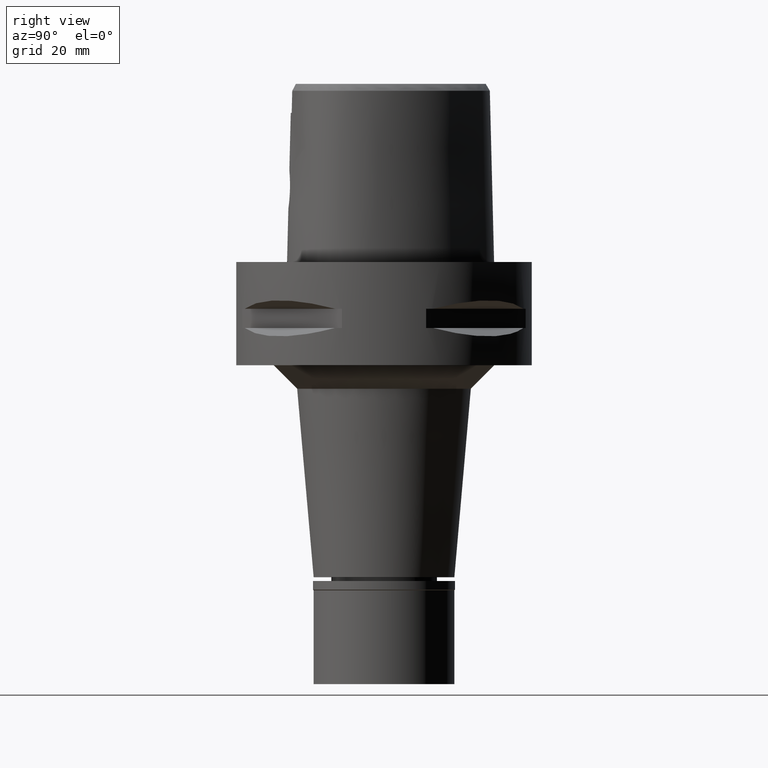
[diagram: clean part render]
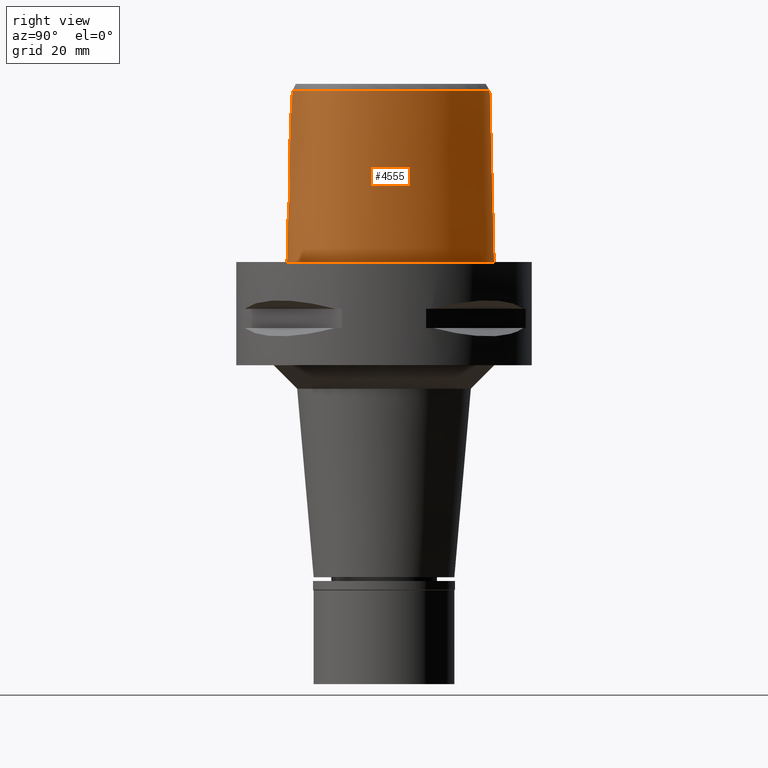
[diagram: same view with one face highlighted and labeled with its STEP entity id]
A machine part, right view. The second image highlights one B-rep face of the part: STEP entity #4555.
In plain terms, the highlighted face is a freeform B-spline surface patch.
Its self-contained STEP definition (entity closure, byte-faithful):
#24 = CARTESIAN_POINT ( 'NONE',  ( 3.328551379731097271, -20.18727222456396220, 13.19186960082585891 ) ) ;
#50 = CARTESIAN_POINT ( 'NONE',  ( 3.169150985200430259, -20.20760989054311807, 12.97742286930016142 ) ) ;
#77 = CARTESIAN_POINT ( 'NONE',  ( 3.644654988711822696, -20.14185568960223094, 13.73169098998871895 ) ) ;
#102 = CARTESIAN_POINT ( 'NONE',  ( 2.871987183427979318, -20.09819914941970609, 18.35556622516799763 ) ) ;
#125 = CARTESIAN_POINT ( 'NONE',  ( 3.755991642143149623, -20.04748304465436348, 17.01495889863319277 ) ) ;
#142 = EDGE_CURVE ( 'NONE', #2835, #2543, #1356, .T. ) ;
#171 = CARTESIAN_POINT ( 'NONE',  ( 19.88562079789232229, 4.345879946636718394, 36.52186680739950475 ) ) ;
#182 = CARTESIAN_POINT ( 'NONE',  ( 11.02138187803999791, -18.31230475175999928, 24.59139440262000065 ) ) ;
#195 = CARTESIAN_POINT ( 'NONE',  ( 21.32871516740222972, -4.105831245034531563, 36.52186680739950475 ) ) ;
#206 = CARTESIAN_POINT ( 'NONE',  ( 11.23887130061999962, -18.91049775489000240, -0.7304374575036000072 ) ) ;
#228 = CARTESIAN_POINT ( 'NONE',  ( -1.574545528900000111E-11, 22.56201468012000078, 36.52186680743999858 ) ) ;
#236 = CARTESIAN_POINT ( 'NONE',  ( 16.97022730764999920, -15.69280482675999799, -0.7304374575036000072 ) ) ;
#242 = VERTEX_POINT ( 'NONE', #631 ) ;
#283 = CARTESIAN_POINT ( 'NONE',  ( 21.68301111231999911, -0.3332743857734999926, 11.93047847256000082 ) ) ;
#312 = CARTESIAN_POINT ( 'NONE',  ( 7.580410837343000807, 21.33037925809000157, -0.7304374575036000072 ) ) ;
#314 = CARTESIAN_POINT ( 'NONE',  ( 2.570081009077924694, -20.27170108689831096, 12.36908902938837329 ) ) ;
#334 = CARTESIAN_POINT ( 'NONE',  ( -0.4812391251881000254, 23.48607175731999774, -0.7304374575036000072 ) ) ;
#352 = CARTESIAN_POINT ( 'NONE',  ( 2.438150645040000342, 22.68791659256999793, 24.59139440262000065 ) ) ;
#353 = CARTESIAN_POINT ( 'NONE',  ( 2.808608589969339597, -20.24816661311874455, 12.58196638594038674 ) ) ;
#356 = CARTESIAN_POINT ( 'NONE',  ( 0.8548392429687943217, 23.47500000932142683, -3.727169554164789372E-07 ) ) ;
#380 = CARTESIAN_POINT ( 'NONE',  ( 4.750826283117000060, 21.65775821445999583, 37.25231033268999425 ) ) ;
#406 = CARTESIAN_POINT ( 'NONE',  ( 3.860403433738023526, -20.04330035600995430, 16.72651338064458670 ) ) ;
#431 = CARTESIAN_POINT ( 'NONE',  ( 3.850246712577160668, -20.10780614032428204, 14.21172176771008466 ) ) ;
#454 = CARTESIAN_POINT ( 'NONE',  ( 3.918456791373584380, -20.04170609324362218, 16.53266420031117434 ) ) ;
#480 = CARTESIAN_POINT ( 'NONE',  ( 3.714384130528385342, -20.13065104887392565, 13.88538127572184244 ) ) ;
#538 = EDGE_CURVE ( 'NONE', #1228, #2155, #3386, .T. ) ;
#543 = CARTESIAN_POINT ( 'NONE',  ( 17.90324024157894556, -13.53935104436586734, 36.52186680739950475 ) ) ;
#568 = CARTESIAN_POINT ( 'NONE',  ( 19.55745538001410466, -11.29150212658093899, 36.52186680739950475 ) ) ;
#579 = CARTESIAN_POINT ( 'NONE',  ( 19.81622840921000162, -11.44090480521000153, 24.59139440262000065 ) ) ;
#583 = ORIENTED_EDGE ( 'NONE', *, *, #2806, .T. ) ;
#589 = CARTESIAN_POINT ( 'NONE',  ( -1.131694588379999952E-11, -20.67499999999999716, 1.488068927338999721E-13 ) ) ;
#593 = CARTESIAN_POINT ( 'NONE',  ( 20.09619608769164856, -10.23243839429906288, 36.52186680739950475 ) ) ;
#604 = CARTESIAN_POINT ( 'NONE',  ( 6.232237617093999482, -19.68961197962000043, 24.59139440262000065 ) ) ;
#617 = CARTESIAN_POINT ( 'NONE',  ( 2.113823673620303989, -20.67500000931492821, -3.727169554164789372E-07 ) ) ;
#631 = CARTESIAN_POINT ( 'NONE',  ( 3.637738219117000238, -19.56971420299000286, 36.52185956443999970 ) ) ;
#633 = FACE_OUTER_BOUND ( 'NONE', #4537, .T. ) ;
#644 = CARTESIAN_POINT ( 'NONE',  ( 14.67337964882495527, -17.21410157061511370, -3.727169554164789372E-07 ) ) ;
#675 = CARTESIAN_POINT ( 'NONE',  ( 0.5662264715049001307, 22.56729439776000135, 37.25231033268999425 ) ) ;
#676 = CARTESIAN_POINT ( 'NONE',  ( 1.222756221967064905, -20.36284569854002413, 11.63840396453690929 ) ) ;
#703 = CARTESIAN_POINT ( 'NONE',  ( 2.758179676619026299, -20.25337897196584791, 12.53390918840871926 ) ) ;
#722 = CARTESIAN_POINT ( 'NONE',  ( 20.76670354388999939, 4.663413652101000118, -0.7304374575036000072 ) ) ;
#738 = DIRECTION ( 'NONE',  ( -8.648272217531810680E-13, -0.02499051295360945474, -0.9996876883618780463 ) ) ;
#744 = CARTESIAN_POINT ( 'NONE',  ( 17.25769873839000113, 9.963736663570999852, 37.25231033268999425 ) ) ;
#765 = CARTESIAN_POINT ( 'NONE',  ( 7.108589361577442922, 20.52412316394332947, 36.52186680739950475 ) ) ;
#771 = CARTESIAN_POINT ( 'NONE',  ( 13.93560880836000138, 15.24203803628000031, 24.59139440262000065 ) ) ;
#772 = CARTESIAN_POINT ( 'NONE',  ( 3.727121516743383545, -20.12854809717478233, 13.91496385434093774 ) ) ;
#801 = CARTESIAN_POINT ( 'NONE',  ( 2.467729343594488700, -20.12009802658483082, 18.71204267792738918 ) ) ;
#824 = CARTESIAN_POINT ( 'NONE',  ( 4.048221369819730242, -20.05572751809195609, 15.37605551827538974 ) ) ;
#852 = CARTESIAN_POINT ( 'NONE',  ( 3.289399613302795622, -20.19244639184432444, 13.13636645578713846 ) ) ;
#877 = CARTESIAN_POINT ( 'NONE',  ( 4.002664568996730843, -20.07397280446545906, 14.86850854360806728 ) ) ;
#927 = CARTESIAN_POINT ( 'NONE',  ( -0.6840631435195000387, -20.68668115835999899, -0.7304374575036000072 ) ) ;
#938 = ORIENTED_EDGE ( 'NONE', *, *, #142, .T. ) ;
#941 = VERTEX_POINT ( 'NONE', #2462 ) ;
#959 = CARTESIAN_POINT ( 'NONE',  ( 20.96392264458999932, -8.820258357166000707, 24.59139440262000065 ) ) ;
#970 = CARTESIAN_POINT ( 'NONE',  ( 2.041042029990999821E-08, -19.88004246002000031, 31.80000004972000127 ) ) ;
#974 = CARTESIAN_POINT ( 'NONE',  ( 7.300578979383786304, -19.07170738131021182, 36.52186680739950475 ) ) ;
#983 = CARTESIAN_POINT ( 'NONE',  ( 1.886855602975000101, -20.71358918984000042, -0.7304374575036000072 ) ) ;
#991 = ORIENTED_EDGE ( 'NONE', *, *, #538, .F. ) ;
#1007 = CARTESIAN_POINT ( 'NONE',  ( 18.12052916771000000, -13.74516039444000093, 24.59139440262000065 ) ) ;
#1037 = CARTESIAN_POINT ( 'NONE',  ( 20.36913789612999892, -10.35391850327000007, 24.59139440262000065 ) ) ;
#1058 = CARTESIAN_POINT ( 'NONE',  ( 2.373090365241999677, 22.37624369964000337, 37.25231033268999425 ) ) ;
#1059 = CARTESIAN_POINT ( 'NONE',  ( 0.8988479711755550383, -20.37494334817867170, 11.54879813003848810 ) ) ;
#1078 = CARTESIAN_POINT ( 'NONE',  ( 2.568271204636999983, 23.31126237844000215, -0.7304374575036000072 ) ) ;
#1105 = CARTESIAN_POINT ( 'NONE',  ( -0.6834384192703000238, 22.83968711892999792, 24.59139440262000065 ) ) ;
#1106 = CARTESIAN_POINT ( 'NONE',  ( 1.488028627205682186, -20.35026873354180665, 11.73319909950358131 ) ) ;
#1108 = CARTESIAN_POINT ( 'NONE',  ( 18.06826689337374603, 10.43171875469033338, -3.727169554164789372E-07 ) ) ;
#1128 = CARTESIAN_POINT ( 'NONE',  ( 5.105252914032000433, 22.54305023722000101, -0.7304374575036000072 ) ) ;
#1132 = CARTESIAN_POINT ( 'NONE',  ( 2.564517728871615443, 23.29328125917631809, -3.727169554164789372E-07 ) ) ;
#1146 = CARTESIAN_POINT ( 'NONE',  ( 2.376843874103945264, 22.39422497744826757, 36.52186680739950475 ) ) ;
#1151 = CARTESIAN_POINT ( 'NONE',  ( 17.80867316501999653, 10.28184213408999881, 11.93047847256000082 ) ) ;
#1154 = CARTESIAN_POINT ( 'NONE',  ( 3.599362307509538006, -20.14875877778753122, 13.64217581390560952 ) ) ;
#1178 = CARTESIAN_POINT ( 'NONE',  ( 3.128678969662743281, -20.08334280844270836, 18.07279819847135727 ) ) ;
#1205 = CARTESIAN_POINT ( 'NONE',  ( 3.950323019400626468, -20.04135421479582746, 16.40274729697467038 ) ) ;
#1227 = CARTESIAN_POINT ( 'NONE',  ( 0.4948470747701968486, -20.18628283969000492, 19.54999999999999716 ) ) ;
#1228 = VERTEX_POINT ( 'NONE', #4660 ) ;
#1254 = CARTESIAN_POINT ( 'NONE',  ( 1.027682876513654531, -20.17741712424492206, 19.45809765211528486 ) ) ;
#1304 = CARTESIAN_POINT ( 'NONE',  ( 1.836480395436000057, -19.76356544504999846, 37.25231033268999425 ) ) ;
#1330 = CARTESIAN_POINT ( 'NONE',  ( 20.36546124030999749, -11.75800452930000084, -0.7304374575036000072 ) ) ;
#1350 = CARTESIAN_POINT ( 'NONE',  ( 3.637738219117000238, -19.56971420299000286, 36.52185956443999970 ) ) ;
#1356 = B_SPLINE_CURVE_WITH_KNOTS ( 'NONE', 3,
 ( #3818, #4505, #2604, #4912 ),
 .UNSPECIFIED., .F., .F.,
 ( 4, 4 ),
 ( 0.0000000000000000000, 1.000000000000000000 ),
 .UNSPECIFIED. ) ;
#1373 = CARTESIAN_POINT ( 'NONE',  ( 20.93173253064228589, -10.60431641004089087, -3.727169554164789372E-07 ) ) ;
#1378 = DIRECTION ( 'NONE',  ( 2.016568643993959699E-12, 0.02499051290953949525, -0.9996876883629797206 ) ) ;
#1386 = CARTESIAN_POINT ( 'NONE',  ( -0.4439347150178000190, -19.74161860721999773, 37.25231033268999425 ) ) ;
#1407 = CARTESIAN_POINT ( 'NONE',  ( 18.89485301902999836, -12.27684390833000094, 37.25231033268999425 ) ) ;
#1436 = CARTESIAN_POINT ( 'NONE',  ( 14.17879766206000092, 15.44741201759999960, 11.93047847256000082 ) ) ;
#1454 = CARTESIAN_POINT ( 'NONE',  ( 13.69241995467000095, 15.03666405495000191, 37.25231033268999425 ) ) ;
#1476 = CARTESIAN_POINT ( 'NONE',  ( 18.08416037834000178, 10.44089486934999833, -0.7304374575036000072 ) ) ;
#1505 = CARTESIAN_POINT ( 'NONE',  ( 7.420053185472999857, 21.05635753440000002, 11.93047847256000082 ) ) ;
#1509 = CARTESIAN_POINT ( 'NONE',  ( 6.819697653479363616E-09, -19.98212988583497207, 27.71666688228305730 ) ) ;
#1530 = CARTESIAN_POINT ( 'NONE',  ( 21.99640701044999602, -0.2778990171974999868, -0.7304374575036000072 ) ) ;
#1531 = CARTESIAN_POINT ( 'NONE',  ( -1.411580633884000040E-12, -20.38876923348000147, 11.44999999999999929 ) ) ;
#1555 = CARTESIAN_POINT ( 'NONE',  ( 2.915545606164124948, -20.09570297646316206, 18.31119129211889884 ) ) ;
#1582 = CARTESIAN_POINT ( 'NONE',  ( 3.437023659536085241, -20.17240543790910223, 13.35378256642169426 ) ) ;
#1609 = CARTESIAN_POINT ( 'NONE',  ( 3.042491796684546390, -20.22274507510627117, 12.82354767342775048 ) ) ;
#1632 = CARTESIAN_POINT ( 'NONE',  ( 2.772326413960481961, -20.10389738242802338, 18.45539022241145233 ) ) ;
#1659 = CARTESIAN_POINT ( 'NONE',  ( 2.963657114689049354, -20.09293563006357175, 18.26079471621624606 ) ) ;
#1715 = CARTESIAN_POINT ( 'NONE',  ( 10.91263716675000062, -18.01320825019000083, 37.25231033268999425 ) ) ;
#1726 = CARTESIAN_POINT ( 'NONE',  ( 11.23259757047761731, -18.89324219629722279, -3.727169554164789372E-07 ) ) ;
#1731 = CARTESIAN_POINT ( 'NONE',  ( 17.27359236349375493, 9.972912859139423603, 36.52186680739950475 ) ) ;
#1738 = EDGE_CURVE ( 'NONE', #2835, #242, #3852, .T. ) ;
#1741 = CARTESIAN_POINT ( 'NONE',  ( 14.36818039475999953, -16.67825740961999870, 24.59139440262000065 ) ) ;
#1754 = CARTESIAN_POINT ( 'NONE',  ( 22.05732875248838809, -6.847636720081132111, -3.727169554164789372E-07 ) ) ;
#1760 = CARTESIAN_POINT ( 'NONE',  ( 3.704239288984441103, -19.64128042389065598, 33.37395322129999897 ) ) ;
#1768 = CARTESIAN_POINT ( 'NONE',  ( 16.38077705838000142, -14.94316477250999853, 37.25231033268999425 ) ) ;
#1790 = CARTESIAN_POINT ( 'NONE',  ( 19.66427014177000032, -12.83600704346999954, -0.7304374575036000072 ) ) ;
#1810 = CARTESIAN_POINT ( 'NONE',  ( 17.53318595169999838, 10.12278939882999929, 24.59139440262000065 ) ) ;
#1813 = CARTESIAN_POINT ( 'NONE',  ( 0.2519697368789033387, -20.38876923348000503, 11.45000000000000107 ) ) ;
#1839 = CARTESIAN_POINT ( 'NONE',  ( -0.4558512756147999889, 22.85344991619000155, 24.59139440262000065 ) ) ;
#1856 = LINE ( 'NONE', #4524, #2150 ) ;
#1880 = CARTESIAN_POINT ( 'NONE',  ( -0.7217521644347000276, 23.47150798142000028, -0.7304374575036000072 ) ) ;
#1908 = CARTESIAN_POINT ( 'NONE',  ( 20.16779752749000210, 4.447573712576999405, 24.59139440262000065 ) ) ;
#1935 = CARTESIAN_POINT ( 'NONE',  ( 3.664274183422228326, -20.05181531545091289, 17.23726368440733836 ) ) ;
#1958 = CARTESIAN_POINT ( 'NONE',  ( 3.765593220700886423, -20.04704214534181261, 16.99108095766544935 ) ) ;
#1980 = CARTESIAN_POINT ( 'NONE',  ( -1.574545528900000111E-11, 22.56201468012000078, 36.52186680743999858 ) ) ;
#1986 = CARTESIAN_POINT ( 'NONE',  ( 1.613182323487282410, -20.15753140428471468, 19.21500890072584866 ) ) ;
#2012 = CARTESIAN_POINT ( 'NONE',  ( 3.003234361619075088, -20.09064592609323441, 18.21745801850105906 ) ) ;
#2036 = CARTESIAN_POINT ( 'NONE',  ( 3.346444325181354706, -20.07049246070043935, 17.78503332968160677 ) ) ;
#2097 = CARTESIAN_POINT ( 'NONE',  ( -0.4479923916457999589, -20.05810158836000312, 24.59139440262000065 ) ) ;
#2130 = CARTESIAN_POINT ( 'NONE',  ( 5.792640471420000553E-11, 23.47499999999000053, 1.459943277381999819E-13 ) ) ;
#2150 = VECTOR ( 'NONE', #738, 1000.000000000000114 ) ;
#2155 = VERTEX_POINT ( 'NONE', #2431 ) ;
#2172 = CARTESIAN_POINT ( 'NONE',  ( -0.6718836875169000855, -20.05378870694000071, 24.59139440262000065 ) ) ;
#2195 = CARTESIAN_POINT ( 'NONE',  ( 21.26836751593999963, -8.910752275383000409, 11.93047847256000082 ) ) ;
#2217 = CARTESIAN_POINT ( 'NONE',  ( -0.4685452004014000194, 23.16976083675000098, 11.93047847256000082 ) ) ;
#2219 = CARTESIAN_POINT ( 'NONE',  ( 1.511996643077466285, -20.34900293593732101, 11.74281483622962519 ) ) ;
#2226 = ORIENTED_EDGE ( 'NONE', *, *, #3103, .T. ) ;
#2264 = CARTESIAN_POINT ( 'NONE',  ( 7.259695533602999795, 20.78233581071000202, 24.59139440262000065 ) ) ;
#2265 = CARTESIAN_POINT ( 'NONE',  ( 2.396851615573344141, -20.28741283536913542, 12.23208293719065587 ) ) ;
#2267 = CARTESIAN_POINT ( 'NONE',  ( 7.571159439071173836, 21.31457032055926248, -3.727169554164789372E-07 ) ) ;
#2284 = CARTESIAN_POINT ( 'NONE',  ( 22.07548128559999867, -6.850245534692000149, -0.7304374575036000072 ) ) ;
#2314 = CARTESIAN_POINT ( 'NONE',  ( 10.75753573455999934, 19.18839675325000016, -0.7304374575036000072 ) ) ;
#2316 = CARTESIAN_POINT ( 'NONE',  ( 4.050037399383524139, -20.04599349312466927, 15.75361975466953446 ) ) ;
#2342 = CARTESIAN_POINT ( 'NONE',  ( 3.749536200694208343, -20.04778253193093107, 17.03086640830633058 ) ) ;
#2367 = CARTESIAN_POINT ( 'NONE',  ( 3.686910441666811256, -20.13511169295956904, 13.82359477182902729 ) ) ;
#2400 = CARTESIAN_POINT ( 'NONE',  ( 3.927790621355288891, -20.09243382074274820, 14.47756111166260595 ) ) ;
#2427 = CARTESIAN_POINT ( 'NONE',  ( 3.559803832331179141, -20.05788146350372614, 17.44950363746711020 ) ) ;
#2431 = CARTESIAN_POINT ( 'NONE',  ( 5.792640471420000553E-11, 23.47499999999000053, 1.459943277381999819E-13 ) ) ;
#2462 = CARTESIAN_POINT ( 'NONE',  ( 0.0000000000000000000, -20.18628283968999781, 19.55000000000000071 ) ) ;
#2506 = CARTESIAN_POINT ( 'NONE',  ( -0.6779734155181998956, -20.37023493264999985, 11.93047847256000082 ) ) ;
#2526 = EDGE_CURVE ( 'NONE', #4048, #941, #3740, .T. ) ;
#2529 = CARTESIAN_POINT ( 'NONE',  ( 11.13012658933000054, -18.61140125332999773, 11.93047847256000082 ) ) ;
#2543 = VERTEX_POINT ( 'NONE', #3316 ) ;
#2544 = CARTESIAN_POINT ( 'NONE',  ( 20.67704204633949416, -8.734985285293515034, 36.52186680739950475 ) ) ;
#2557 = CARTESIAN_POINT ( 'NONE',  ( 18.35112161477000114, -13.96357042806000059, 11.93047847256000082 ) ) ;
#2583 = CARTESIAN_POINT ( 'NONE',  ( 14.52531268159999911, -16.95413756753999834, 11.93047847256000082 ) ) ;
#2604 = CARTESIAN_POINT ( 'NONE',  ( 1.251533272180834544, -19.88005341395529513, 31.80000012137777077 ) ) ;
#2607 = CARTESIAN_POINT ( 'NONE',  ( 2.503210924838999762, 22.99958948549999960, 11.93047847256000082 ) ) ;
#2608 = CARTESIAN_POINT ( 'NONE',  ( 1.028701314430592317, -20.37062275902201947, 11.58049741886263284 ) ) ;
#2658 = CARTESIAN_POINT ( 'NONE',  ( 10.74572891661287422, 19.17433594467898317, -3.727169554164789372E-07 ) ) ;
#2674 = CARTESIAN_POINT ( 'NONE',  ( 21.13154908213999761, -6.714587105705999370, 37.25231033268999425 ) ) ;
#2689 = B_SPLINE_CURVE_WITH_KNOTS ( 'NONE', 3,
 ( #1980, #3897, #1146, #4238, #765, #3481, #4832, #1731, #171, #4799, #195, #3232, #2544, #593, #568, #3206, #543, #4057, #3254, #3310, #974, #4370, #1350 ),
 .UNSPECIFIED., .F., .F.,
 ( 4, 1, 1, 1, 1, 1, 1, 1, 1, 1, 1, 1, 1, 1, 1, 1, 1, 1, 1, 1, 4 ),
 ( 0.0000000000000000000, 0.04382683003322340037, 0.08765366006602592908, 0.1314804900989337832, 0.1753073201318416652, 0.2629609801974468475, 0.3506146402631573622, 0.4382683003288677659, 0.5259219603945782806, 0.5697487904274860515, 0.6135756204602886843, 0.6574024504930913171, 0.6793158655094925225, 0.7012292805259991990, 0.7231426955424004044, 0.7450561105588017208, 0.7888829405917096027, 0.8327097706246173736, 0.8765366006573148683, 0.9641902607230883326, 1.000000000000000000 ),
 .UNSPECIFIED. ) ;
#2695 = CARTESIAN_POINT ( 'NONE',  ( 22.26285555981000286, -4.100361500081000088, -0.7304374575036000072 ) ) ;
#2697 = CARTESIAN_POINT ( 'NONE',  ( 4.049643110176855743, -20.05399160878178222, 15.43795828973815354 ) ) ;
#2728 = CARTESIAN_POINT ( 'NONE',  ( 3.504989208453384464, -20.16277707621499715, 13.46647361530370546 ) ) ;
#2753 = CARTESIAN_POINT ( 'NONE',  ( 1.767192251271850090, -20.15197845540204824, 19.14519926631098201 ) ) ;
#2777 = CARTESIAN_POINT ( 'NONE',  ( -1.131694588379999952E-11, -20.67499999999999716, 1.488068927338999721E-13 ) ) ;
#2779 = CARTESIAN_POINT ( 'NONE',  ( 2.844541275131343472, -20.24438467540248965, 12.61708719065900297 ) ) ;
#2780 = ORIENTED_EDGE ( 'NONE', *, *, #2526, .F. ) ;
#2805 = CARTESIAN_POINT ( 'NONE',  ( 3.265869583394081399, -20.07528142228560597, 17.89964299955867233 ) ) ;
#2806 = EDGE_CURVE ( 'NONE', #4048, #4624, #1856, .T. ) ;
#2835 = VERTEX_POINT ( 'NONE', #4149 ) ;
#2889 = CARTESIAN_POINT ( 'NONE',  ( 20.94844325358000248, -10.61175396771999857, -0.7304374575036000072 ) ) ;
#2901 = CARTESIAN_POINT ( 'NONE',  ( 16.95889173171761755, -15.67838867922683654, -3.727169554164789372E-07 ) ) ;
#2924 = CARTESIAN_POINT ( 'NONE',  ( 5.098437020761553029, 22.52602539931565673, -3.727169554164789372E-07 ) ) ;
#2937 = CARTESIAN_POINT ( 'NONE',  ( 14.68244496844000047, -17.23001772545000065, -0.7304374575036000072 ) ) ;
#2948 = VECTOR ( 'NONE', #1378, 1000.000000000000227 ) ;
#2964 = CARTESIAN_POINT ( 'NONE',  ( 20.09084482476000133, -11.59945466724999896, 11.93047847256000082 ) ) ;
#2989 = CARTESIAN_POINT ( 'NONE',  ( 7.099337881732999733, 20.50831408701999692, 37.25231033268999425 ) ) ;
#3008 = CARTESIAN_POINT ( 'NONE',  ( -0.7025952918525000257, 23.15559755017000043, 11.93047847256000082 ) ) ;
#3009 = CARTESIAN_POINT ( 'NONE',  ( 1.734379789051324394, -20.33697246834272931, 11.83436638252415207 ) ) ;
#3030 = CARTESIAN_POINT ( 'NONE',  ( 4.868968493421999888, 21.95285555537999755, 24.59139440262000065 ) ) ;
#3032 = CARTESIAN_POINT ( 'NONE',  ( 0.5100579658808597205, -20.38531276215466903, 11.47358267918780683 ) ) ;
#3060 = CARTESIAN_POINT ( 'NONE',  ( 21.62788420925999944, -4.104079497255999520, 24.59139440262000065 ) ) ;
#3063 = CARTESIAN_POINT ( 'NONE',  ( 0.0000000000000000000, -20.18628283968999781, 19.55000000000000071 ) ) ;
#3082 = CARTESIAN_POINT ( 'NONE',  ( 21.44619314996000270, -6.759806582033999867, 24.59139440262000065 ) ) ;
#3083 = CARTESIAN_POINT ( 'NONE',  ( 1.946611601990727136, -20.32311006286679955, 11.93862046598383486 ) ) ;
#3103 = EDGE_CURVE ( 'NONE', #1228, #242, #2689, .T. ) ;
#3104 = CARTESIAN_POINT ( 'NONE',  ( 2.673904828757010854, -20.10928166633798853, 18.54472627324864575 ) ) ;
#3136 = CARTESIAN_POINT ( 'NONE',  ( 2.880386059684327371, -20.09771851976560342, 18.34709984349605350 ) ) ;
#3145 = ORIENTED_EDGE ( 'NONE', *, *, #1738, .F. ) ;
#3162 = CARTESIAN_POINT ( 'NONE',  ( 2.894506219205052577, -20.09690955887032260, 18.33274339089201277 ) ) ;
#3180 = B_SPLINE_CURVE_WITH_KNOTS ( 'NONE', 3,
 ( #589, #617, #3305, #1726, #644, #2901, #4852, #4098, #4581, #1373, #3712, #1754, #3826, #4074, #3853, #1108, #3329, #2658, #2267, #2924, #1132, #356, #2130 ),
 .UNSPECIFIED., .F., .F.,
 ( 4, 1, 1, 1, 1, 1, 1, 1, 1, 1, 1, 1, 1, 1, 1, 1, 1, 1, 1, 1, 4 ),
 ( 0.0000000000000000000, 0.08333333333344000726, 0.1666666666668000230, 0.2083333333333000081, 0.2500000000000000000, 0.2916666666666999919, 0.3125000000000000000, 0.3333333333333000081, 0.3541666666666999919, 0.3750000000000000000, 0.4166666666666000163, 0.4583333333332000326, 0.4999999999998999689, 0.5833333333332000326, 0.6666666666664999852, 0.7499999999998000488, 0.8333333333329999704, 0.8749999999997000177, 0.9166666666664000651, 0.9583333333329999704, 1.000000000000000000 ),
 .UNSPECIFIED. ) ;
#3187 = CARTESIAN_POINT ( 'NONE',  ( 2.032175996688421638, -20.14130468679994124, 19.00576489867748364 ) ) ;
#3206 = CARTESIAN_POINT ( 'NONE',  ( 18.90964962507504410, -12.28759713487154137, 36.52186680739950475 ) ) ;
#3213 = CARTESIAN_POINT ( 'NONE',  ( 4.045013207771817498, -20.05847505277892395, 15.28275217492799065 ) ) ;
#3232 = CARTESIAN_POINT ( 'NONE',  ( 21.14970177530845774, -6.717195943319587137, 36.52186680739950475 ) ) ;
#3254 = CARTESIAN_POINT ( 'NONE',  ( 14.22011350746694447, -16.41829354688284681, 36.52186680739950475 ) ) ;
#3264 = CARTESIAN_POINT ( 'NONE',  ( 16.57726047481000009, -15.19304479060000013, 24.59139440262000065 ) ) ;
#3294 = CARTESIAN_POINT ( 'NONE',  ( 20.07948521740999936, -10.22500077103999949, 37.25231033268999425 ) ) ;
#3305 = CARTESIAN_POINT ( 'NONE',  ( 6.341471020867912145, -20.29812500922345819, -3.727169554164789372E-07 ) ) ;
#3310 = CARTESIAN_POINT ( 'NONE',  ( 10.91891095220992014, -18.03046396093127157, 36.52186680739950475 ) ) ;
#3316 = CARTESIAN_POINT ( 'NONE',  ( 2.041042029990999821E-08, -19.88004246002000031, 31.80000004972000127 ) ) ;
#3329 = CARTESIAN_POINT ( 'NONE',  ( 14.40795639674408868, 15.64093750605300848, -3.727169554164789372E-07 ) ) ;
#3341 = CARTESIAN_POINT ( 'NONE',  ( 19.40779776751999819, -12.64961933176000031, 11.93047847256000082 ) ) ;
#3367 = CARTESIAN_POINT ( 'NONE',  ( 10.34823250352999935, 18.70095514072999876, 24.59139440262000065 ) ) ;
#3386 = LINE ( 'NONE', #228, #2948 ) ;
#3395 = CARTESIAN_POINT ( 'NONE',  ( -0.4431573508281000384, 22.53713899562999856, 37.25231033268999425 ) ) ;
#3433 = CARTESIAN_POINT ( 'NONE',  ( 19.86834451928999812, 4.339653742813999848, 37.25231033268999425 ) ) ;
#3435 = CARTESIAN_POINT ( 'NONE',  ( 2.830175095658037598, -20.24590160278927797, 12.60298252333451252 ) ) ;
#3440 = EDGE_CURVE ( 'NONE', #4624, #2155, #3180, .T. ) ;
#3461 = CARTESIAN_POINT ( 'NONE',  ( 0.5990982063365000165, 23.20165478056999930, 11.93047847256000082 ) ) ;
#3476 = EDGE_CURVE ( 'NONE', #2543, #941, #4814, .T. ) ;
#3481 = CARTESIAN_POINT ( 'NONE',  ( 10.15538781007171387, 18.47129526702921254, 36.52186680739950475 ) ) ;
#3487 = CARTESIAN_POINT ( 'NONE',  ( 3.080229322184858454, -20.08617626112498655, 18.13071590546251954 ) ) ;
#3510 = CARTESIAN_POINT ( 'NONE',  ( 1.856701250920566260, -20.14848423775658759, 19.09993988372152529 ) ) ;
#3541 = CARTESIAN_POINT ( 'NONE',  ( 1.583085234473553760, -20.15857747892415830, 19.22794739783308060 ) ) ;
#3564 = CARTESIAN_POINT ( 'NONE',  ( 3.787426346252553699, -20.04607170149531115, 16.93525315949906229 ) ) ;
#3587 = CARTESIAN_POINT ( 'NONE',  ( 2.853007646184911206, -20.24348516854157154, 12.62547111175370596 ) ) ;
#3647 = CARTESIAN_POINT ( 'NONE',  ( 6.175998637785000689, -19.37631814735000191, 37.25231033268999425 ) ) ;
#3663 = CARTESIAN_POINT ( 'NONE',  ( -1.411580633884000040E-12, -20.38876923348000147, 11.44999999999999929 ) ) ;
#3670 = CARTESIAN_POINT ( 'NONE',  ( 19.54161199365999835, -11.28235494317000054, 37.25231033268999425 ) ) ;
#3690 = CARTESIAN_POINT ( 'NONE',  ( 3.671249151389730514, -19.60525176641679579, 34.94790639287000289 ) ) ;
#3699 = CARTESIAN_POINT ( 'NONE',  ( 14.21104810791999995, -16.40237725170999994, 37.25231033268999425 ) ) ;
#3712 = CARTESIAN_POINT ( 'NONE',  ( 21.55524826905910274, -8.996025393288993754, -3.727169554164789372E-07 ) ) ;
#3727 = CARTESIAN_POINT ( 'NONE',  ( -0.6657939595156000534, -19.73734248122999801, 37.25231033268999425 ) ) ;
#3740 = B_SPLINE_CURVE_WITH_KNOTS ( 'NONE', 3,
 ( #1531, #1813, #3032, #1059, #2608, #676, #4577, #4177, #1106, #2219, #4221, #4603, #3009, #3083, #3778, #2265, #314, #3847, #4551, #703, #353, #3435, #2779, #3587, #4245, #1609, #50, #4326, #852, #24, #1582, #2728, #1154, #77, #2367, #480, #772, #431, #2400, #877, #4277, #3978, #3213, #824, #2697, #3878, #2316, #3927, #1205, #454, #406, #4728, #3564, #1958, #125, #2342, #3957, #1935, #2427, #2036, #2805, #1178, #3487, #2012, #1659, #1555, #3162, #3136, #102, #1632, #3104, #4677, #801, #4648, #4700, #3903, #3187, #3510, #2753, #4301, #1986, #3541, #1254, #1227, #4353 ),
 .UNSPECIFIED., .F., .F.,
 ( 4, 2, 2, 1, 1, 1, 2, 2, 2, 2, 2, 1, 1, 2, 2, 2, 2, 2, 2, 1, 2, 2, 2, 2, 1, 2, 2, 2, 2, 1, 1, 1, 2, 2, 2, 2, 2, 1, 1, 2, 2, 2, 2, 2, 2, 1, 2, 2, 4 ),
 ( 0.0000000000000000000, 0.06249999999998866185, 0.09374999999998298583, 0.1093749999999801270, 0.1171874999999786282, 0.1210937499999778927, 0.1230468749999775319, 0.1249999999999771572, 0.1874999999999651112, 0.2187499999999589217, 0.2343749999999559519, 0.2421874999999545919, 0.2460937499999538147, 0.2480468749999534817, 0.2499999999999531486, 0.2812499999999481526, 0.2968749999999456546, 0.3124999999999431566, 0.3437499999999381606, 0.3593749999999356626, 0.3671874999999345524, 0.3749999999999334421, 0.4374999999999243938, 0.4687499999999198974, 0.4843749999999174549, 0.4921874999999165112, 0.4999999999999155120, 0.5624999999999061862, 0.5937499999999015232, 0.6093749999998995248, 0.6171874999998983036, 0.6210937499998975264, 0.6230468749998971933, 0.6249999999998968603, 0.6874999999999120703, 0.7187499999999192868, 0.7343749999999230615, 0.7421874999999249489, 0.7460937499999259481, 0.7480468749999265032, 0.7499999999999269473, 0.7812499999999368283, 0.7968749999999416023, 0.8124999999999462652, 0.8437499999999554801, 0.8593749999999601430, 0.8671874999999623634, 0.8749999999999645839, 1.000000000000000000 ),
 .UNSPECIFIED. ) ;
#3777 = CARTESIAN_POINT ( 'NONE',  ( 21.05621931605000086, -0.4440251229254000287, 37.25231033268999425 ) ) ;
#3778 = CARTESIAN_POINT ( 'NONE',  ( 2.282207029739346194, -20.29700151028904287, 12.15162930636602923 ) ) ;
#3818 = CARTESIAN_POINT ( 'NONE',  ( 3.736696120837999402, -19.67778323291999953, 31.80000004972999861 ) ) ;
#3822 = CARTESIAN_POINT ( 'NONE',  ( 0.6155340737522999595, 23.51883497197999873, -0.7304374575036000072 ) ) ;
#3826 = CARTESIAN_POINT ( 'NONE',  ( 22.24453908789068279, -4.100468749944812252, -3.727169554164789372E-07 ) ) ;
#3845 = CARTESIAN_POINT ( 'NONE',  ( 21.76083721778000069, -6.805026058363000452, 11.93047847256000082 ) ) ;
#3847 = CARTESIAN_POINT ( 'NONE',  ( 2.628027080897692436, -20.26624238139287115, 12.41747670474954290 ) ) ;
#3852 = B_SPLINE_CURVE_WITH_KNOTS ( 'NONE', 3,
 ( #4426, #1760, #3690, #4450 ),
 .UNSPECIFIED., .F., .F.,
 ( 4, 4 ),
 ( 0.0000000000000000000, 1.000000000000000000 ),
 .UNSPECIFIED. ) ;
#3853 = CARTESIAN_POINT ( 'NONE',  ( 20.74942741761695686, 4.657187503176337451, -3.727169554164789372E-07 ) ) ;
#3878 = CARTESIAN_POINT ( 'NONE',  ( 4.049995275655165372, -20.05320010482691373, 15.46762644421692201 ) ) ;
#3887 = ORIENTED_EDGE ( 'NONE', *, *, #3440, .T. ) ;
#3897 = CARTESIAN_POINT ( 'NONE',  ( 0.7901461619524816626, 22.56201467849382780, 36.52186680739950475 ) ) ;
#3903 = CARTESIAN_POINT ( 'NONE',  ( 2.144427845722111758, -20.13626349860789233, 18.93810770241860553 ) ) ;
#3927 = CARTESIAN_POINT ( 'NONE',  ( 4.026067555606396731, -20.04243146964170563, 16.01312629722104575 ) ) ;
#3957 = CARTESIAN_POINT ( 'NONE',  ( 3.745459306425495516, -20.04797394566475788, 17.04080371184727483 ) ) ;
#3978 = CARTESIAN_POINT ( 'NONE',  ( 4.038482248008474329, -20.06165359963105388, 15.18817722017820415 ) ) ;
#4040 = CARTESIAN_POINT ( 'NONE',  ( 6.344715575711000533, -20.31619964417000190, -0.7304374575036000072 ) ) ;
#4048 = VERTEX_POINT ( 'NONE', #3663 ) ;
#4057 = CARTESIAN_POINT ( 'NONE',  ( 16.39211273426244375, -14.95758104715563341, 36.52186680739950475 ) ) ;
#4074 = CARTESIAN_POINT ( 'NONE',  ( 21.97832648709144010, -0.2810937483697996120, -3.727169554164789372E-07 ) ) ;
#4086 = CARTESIAN_POINT ( 'NONE',  ( 6.288476596401999075, -20.00290581189999983, 11.93047847256000082 ) ) ;
#4098 = CARTESIAN_POINT ( 'NONE',  ( 19.64947366619033886, -12.82525391174291940, -3.727169554164789372E-07 ) ) ;
#4135 = CARTESIAN_POINT ( 'NONE',  ( 21.57281238729000350, -9.001246193598998246, -0.7304374575036000072 ) ) ;
#4149 = CARTESIAN_POINT ( 'NONE',  ( 3.736696120837999402, -19.67778323291999953, 31.80000004972999861 ) ) ;
#4153 = CARTESIAN_POINT ( 'NONE',  ( 0.5826623389207000736, 22.88447458917000432, 24.59139440262000065 ) ) ;
#4177 = CARTESIAN_POINT ( 'NONE',  ( 1.432005274344079426, -20.35315137661976337, 11.71134280122707416 ) ) ;
#4220 = CARTESIAN_POINT ( 'NONE',  ( 14.42198651576000046, 15.65278599892999978, -0.7304374575036000072 ) ) ;
#4221 = CARTESIAN_POINT ( 'NONE',  ( 1.527965580144372781, -20.34815231994709706, 11.74928068373174384 ) ) ;
#4238 = CARTESIAN_POINT ( 'NONE',  ( 4.757642236485415843, 21.67478320247792567, 36.52186680739950475 ) ) ;
#4243 = CARTESIAN_POINT ( 'NONE',  ( 21.31039853397999906, -4.105938495843999725, 37.25231033268999425 ) ) ;
#4245 = CARTESIAN_POINT ( 'NONE',  ( 2.953000302317453141, -20.23281254683988806, 12.72512295698803619 ) ) ;
#4277 = CARTESIAN_POINT ( 'NONE',  ( 4.020738798822047322, -20.06858537622218819, 14.99755720163532580 ) ) ;
#4301 = CARTESIAN_POINT ( 'NONE',  ( 1.675120599133841148, -20.15532933629823020, 19.18749499249038237 ) ) ;
#4326 = CARTESIAN_POINT ( 'NONE',  ( 3.210108431846594890, -20.20255916619493419, 13.02975361489744976 ) ) ;
#4353 = CARTESIAN_POINT ( 'NONE',  ( 0.0000000000000000000, -20.18628283968999781, 19.55000000000000071 ) ) ;
#4370 = CARTESIAN_POINT ( 'NONE',  ( 4.467522181836431905, -19.48130276147793793, 36.52186680739950475 ) ) ;
#4404 = CARTESIAN_POINT ( 'NONE',  ( 1.853272131282999835, -20.08024002664000207, 24.59139440262000065 ) ) ;
#4426 = CARTESIAN_POINT ( 'NONE',  ( 3.736696120837999402, -19.67778323291999953, 31.80000004972999861 ) ) ;
#4433 = CARTESIAN_POINT ( 'NONE',  ( 20.65879057485999937, -10.48283623550000065, 11.93047847256000082 ) ) ;
#4450 = CARTESIAN_POINT ( 'NONE',  ( 3.637738219117000238, -19.56971420299000286, 36.52185956443999970 ) ) ;
#4455 = CARTESIAN_POINT ( 'NONE',  ( -0.4561077449019999563, -20.69106755065000058, -0.7304374575036000072 ) ) ;
#4463 = CARTESIAN_POINT ( 'NONE',  ( 6.839690409372270780E-09, -20.08420636276309779, 23.63333344114137446 ) ) ;
#4478 = CARTESIAN_POINT ( 'NONE',  ( 18.58171406182000140, -14.18198046166999937, -0.7304374575036000072 ) ) ;
#4505 = CARTESIAN_POINT ( 'NONE',  ( 2.503154195451082753, -19.81241979351004545, 31.80000012137776366 ) ) ;
#4508 = CARTESIAN_POINT ( 'NONE',  ( 16.77374389123000142, -15.44292480867999906, 11.93047847256000082 ) ) ;
#4524 = CARTESIAN_POINT ( 'NONE',  ( -1.411580633884000040E-12, -20.38876923348000147, 11.44999999999999929 ) ) ;
#4529 = CARTESIAN_POINT ( 'NONE',  ( 4.987110703726999716, 22.24795289629999928, 11.93047847256000082 ) ) ;
#4537 = EDGE_LOOP ( 'NONE', ( #991, #2226, #3145, #938, #4635, #2780, #583, #3887 ) ) ;
#4550 = CARTESIAN_POINT ( 'NONE',  ( -0.6642815466879999908, 22.52377668767999808, 37.25231033268999425 ) ) ;
#4551 = CARTESIAN_POINT ( 'NONE',  ( 2.714817435285842517, -20.25772213911198349, 12.49437854279829274 ) ) ;
#4555 = ADVANCED_FACE ( 'NONE', ( #633 ), #4711, .T. ) ;
#4577 = CARTESIAN_POINT ( 'NONE',  ( 1.319600680390135672, -20.35863312411227710, 11.66994494017183470 ) ) ;
#4581 = CARTESIAN_POINT ( 'NONE',  ( 20.34961799365099466, -11.74885742654150533, -3.727169554164789372E-07 ) ) ;
#4602 = CARTESIAN_POINT ( 'NONE',  ( 20.65947777323999901, -8.729764438950001093, 37.25231033268999425 ) ) ;
#4603 = CARTESIAN_POINT ( 'NONE',  ( 1.537967824490479307, -20.34761404973958676, 11.75337532982781674 ) ) ;
#4621 = CARTESIAN_POINT ( 'NONE',  ( 20.46725053569000252, 4.555493682338999761, 11.93047847256000082 ) ) ;
#4624 = VERTEX_POINT ( 'NONE', #2777 ) ;
#4635 = ORIENTED_EDGE ( 'NONE', *, *, #3476, .T. ) ;
#4648 = CARTESIAN_POINT ( 'NONE',  ( 2.361140904826575682, -20.12552479265205108, 18.79118822093464658 ) ) ;
#4660 = CARTESIAN_POINT ( 'NONE',  ( -1.574545528900000111E-11, 22.56201468012000078, 36.52186680743999858 ) ) ;
#4677 = CARTESIAN_POINT ( 'NONE',  ( 2.520050460812875759, -20.11738995382087936, 18.67115940202033997 ) ) ;
#4700 = CARTESIAN_POINT ( 'NONE',  ( 2.305334229533273493, -20.12831948498839907, 18.83048013503712426 ) ) ;
#4711 = B_SPLINE_SURFACE_WITH_KNOTS ( 'NONE', 3, 3, ( 
 ( #927, #2506, #2172, #3727 ),
 ( #4455, #4866, #2097, #1386 ),
 ( #983, #4785, #4404, #1304 ),
 ( #4040, #4086, #604, #3647 ),
 ( #206, #2529, #182, #1715 ),
 ( #2937, #2583, #1741, #3699 ),
 ( #236, #4508, #3264, #1768 ),
 ( #4478, #2557, #1007, #4808 ),
 ( #1790, #3341, #4887, #1407 ),
 ( #1330, #2964, #579, #3670 ),
 ( #2889, #4433, #1037, #3294 ),
 ( #4135, #2195, #959, #4602 ),
 ( #2284, #3845, #3082, #2674 ),
 ( #2695, #4938, #3060, #4243 ),
 ( #1530, #283, #4957, #3777 ),
 ( #722, #4621, #1908, #3433 ),
 ( #1476, #1151, #1810, #744 ),
 ( #4220, #1436, #771, #1454 ),
 ( #2314, #4982, #3367, #4915 ),
 ( #312, #1505, #2264, #2989 ),
 ( #1128, #4529, #3030, #380 ),
 ( #1078, #2607, #352, #1058 ),
 ( #3822, #3461, #4153, #675 ),
 ( #334, #2217, #1839, #3395 ),
 ( #1880, #3008, #1105, #4550 ) ),
 .UNSPECIFIED., .F., .F., .F.,
 ( 4, 1, 1, 1, 1, 1, 1, 1, 1, 1, 1, 1, 1, 1, 1, 1, 1, 1, 1, 1, 1, 1, 4 ),
 ( 4, 4 ),
 ( -0.008985960173604000401, 0.0000000000000000000, 0.08333333333344000726, 0.1666666666668000230, 0.2083333333333000081, 0.2500000000000000000, 0.2916666666666999919, 0.3125000000000000000, 0.3333333333333000081, 0.3541666666666999919, 0.3750000000000000000, 0.4166666666666000163, 0.4583333333332000326, 0.4999999999998999689, 0.5833333333332000326, 0.6666666666664999852, 0.7499999999998000488, 0.8333333333329999704, 0.8749999999997000177, 0.9166666666664000651, 0.9583333333329999704, 1.000000000000000000, 1.011710456763000199 ),
 ( 7.050254990925999566E-09, 0.9999996404369999592 ),
 .UNSPECIFIED. ) ;
#4728 = CARTESIAN_POINT ( 'NONE',  ( 3.828814954410757032, -20.04436409866677593, 16.82317999465200131 ) ) ;
#4785 = CARTESIAN_POINT ( 'NONE',  ( 1.870063867128999746, -20.39691460823999947, 11.93047847256000082 ) ) ;
#4799 = CARTESIAN_POINT ( 'NONE',  ( 21.07429999883046534, -0.4408303635841072654, 36.52186680739950475 ) ) ;
#4808 = CARTESIAN_POINT ( 'NONE',  ( 17.88993672065999974, -13.52675036082999860, 37.25231033268999425 ) ) ;
#4814 = B_SPLINE_CURVE_WITH_KNOTS ( 'NONE', 3,
 ( #970, #1509, #4463, #3063 ),
 .UNSPECIFIED., .F., .F.,
 ( 4, 4 ),
 ( 0.0000000000000000000, 1.000000000000000000 ),
 .UNSPECIFIED. ) ;
#4832 = CARTESIAN_POINT ( 'NONE',  ( 13.70645019739350801, 15.04851265229904378, 36.52186680739950475 ) ) ;
#4852 = CARTESIAN_POINT ( 'NONE',  ( 18.56841065820153602, -14.16937988923751668, -3.727169554164789372E-07 ) ) ;
#4866 = CARTESIAN_POINT ( 'NONE',  ( -0.4520500682738999854, -20.37458456950999874, 11.93047847256000082 ) ) ;
#4887 = CARTESIAN_POINT ( 'NONE',  ( 19.15132539328000405, -12.46323162004999929, 24.59139440262000065 ) ) ;
#4912 = CARTESIAN_POINT ( 'NONE',  ( 2.041042029990999821E-08, -19.88004246002000031, 31.80000004972000127 ) ) ;
#4915 = CARTESIAN_POINT ( 'NONE',  ( 10.14358088801999891, 18.45723433447999895, 37.25231033268999425 ) ) ;
#4938 = CARTESIAN_POINT ( 'NONE',  ( 21.94536988453999982, -4.102220498669000293, 11.93047847256000082 ) ) ;
#4957 = CARTESIAN_POINT ( 'NONE',  ( 21.36961521418000132, -0.3886497543493999673, 24.59139440262000065 ) ) ;
#4982 = CARTESIAN_POINT ( 'NONE',  ( 10.55288411905000068, 18.94467594698999946, 11.93047847256000082 ) ) ;